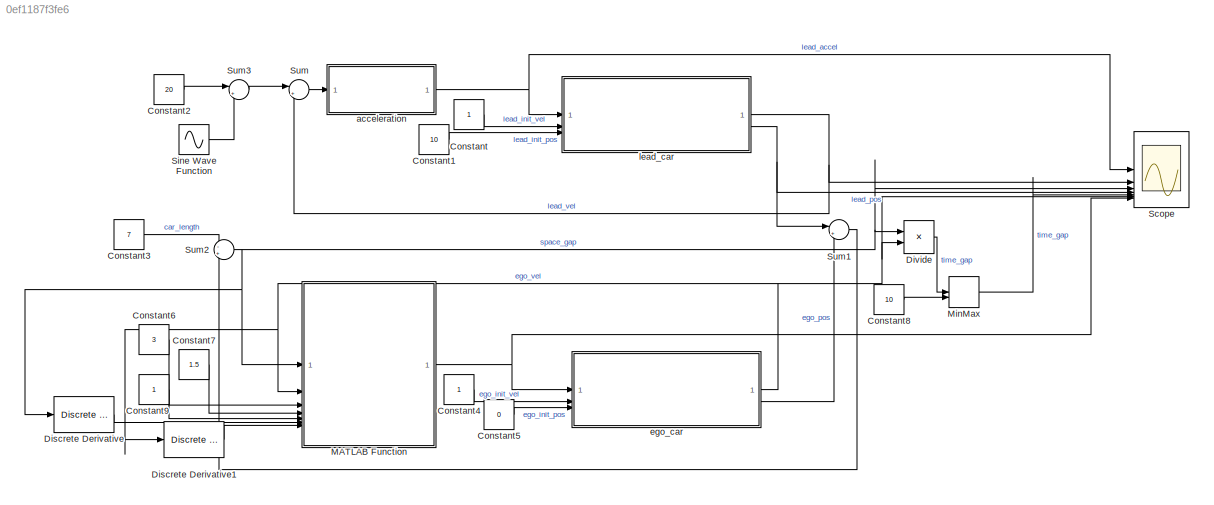
MODEL slx_0ef1187f3fe6
KIND model
CONFIG AbsTol = auto
CONFIG EnableMultiTasking = off
CONFIG FixedStep = 0.01
CONFIG MaxStep = auto
CONFIG MinStep = auto
CONFIG RelTol = 1e-3
CONFIG SampleTimeConstraint = Unconstrained
CONFIG SolverName = FixedStepAuto
CONFIG StartTime = 0.0
CONFIG StopTime = 100
BLOCK [Constant] Constant
BLOCK [Constant] Constant1
  Value = 10
BLOCK [Constant] Constant2
  Value = 20
BLOCK [Constant] Constant3
  Value = 7
BLOCK [Constant] Constant4
BLOCK [Constant] Constant5
  Value = 0
BLOCK [Constant] Constant6
  Value = 3
BLOCK [Constant] Constant7
  Value = 1.5
BLOCK [Constant] Constant8
  Value = 10
BLOCK [Constant] Constant9
BLOCK [Reference] Discrete Derivative  REF=simulink/Discrete/Discrete Derivative
  SourceBlock = simulink/Discrete/Discrete Derivative
  SourceType = Discrete Derivative
BLOCK [Reference] Discrete Derivative1  REF=simulink/Discrete/Discrete Derivative
  SourceBlock = simulink/Discrete/Discrete Derivative
  SourceType = Discrete Derivative
BLOCK [Product] Divide
  Inputs = */
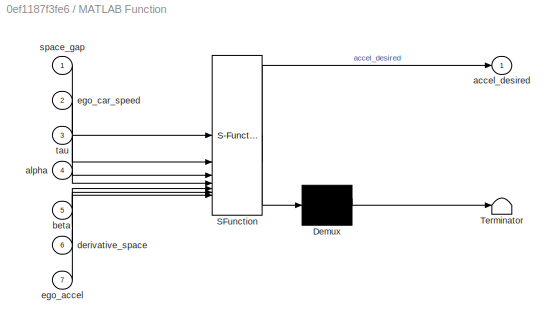
BLOCK [SubSystem] MATLAB Function
  ErrorFcn = Stateflow.Translate.translate
  PermitHierarchicalResolution = ExplicitOnly
  SFBlockType = MATLAB Function
  TreatAsAtomicUnit = on
BLOCK [Demux] MATLAB Function/ Demux 
  Outputs = 1
BLOCK [S-Function] MATLAB Function/ SFunction 
  EnableBusSupport = on
  FunctionName = sf_sfun
  PortCounts = [7 2]
  SFcnIsStateOwnerBlock = off
  SFunctionDeploymentMode = off
  Tag = Stateflow S-Function 1
BLOCK [Terminator] MATLAB Function/ Terminator 
BLOCK [Outport] MATLAB Function/accel_desired
BLOCK [Inport] MATLAB Function/alpha
  Port = 4
BLOCK [Inport] MATLAB Function/beta
  Port = 5
BLOCK [Inport] MATLAB Function/derivative_space
  Port = 6
BLOCK [Inport] MATLAB Function/ego_accel
  Port = 7
BLOCK [Inport] MATLAB Function/ego_car_speed
  Port = 2
BLOCK [Inport] MATLAB Function/space_gap
BLOCK [Inport] MATLAB Function/tau
  Port = 3
BLOCK [MinMax] MinMax
  Inputs = 2
BLOCK [Scope] Scope
  Floating = off
  NumInputPorts = 7
  ScopeSpecificationString = Simulink.scopes.TimeScopeBlockCfg('CurrentConfiguration', extmgr.ConfigurationSet(extmgr.Configuration('Core','General UI',true),extmgr.Configuration('Core','Source UI',true),extmgr.Configuration('Sources','WiredSimulink',true),extmgr.Configuration('Visuals','Time Domain',true,'SerializedDisplays',{struct('MinYLimReal','-10.00000','MaxYLimReal','26.372','YLabelReal','','MinYLimMag','0.00000','MaxY...<+1587ch>
BLOCK [Sin] Sine Wave Function
  Amplitude = 5
  SampleTime = 0
BLOCK [Sum] Sum
  Inputs = |+-
BLOCK [Sum] Sum1
  Inputs = |+-
BLOCK [Sum] Sum2
  Inputs = -+
BLOCK [Sum] Sum3
  Inputs = |++
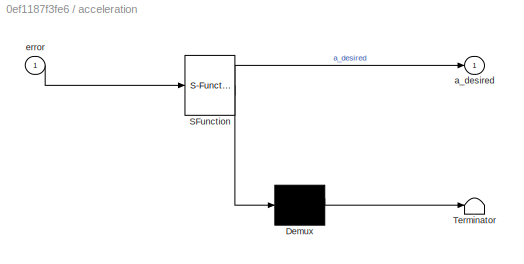
BLOCK [SubSystem] acceleration
  ErrorFcn = Stateflow.Translate.translate
  PermitHierarchicalResolution = ExplicitOnly
  SFBlockType = MATLAB Function
  TreatAsAtomicUnit = on
BLOCK [Demux] acceleration/ Demux 
  Outputs = 1
BLOCK [S-Function] acceleration/ SFunction 
  EnableBusSupport = on
  FunctionName = sf_sfun
  PortCounts = [1 2]
  SFcnIsStateOwnerBlock = off
  SFunctionDeploymentMode = off
  Tag = Stateflow S-Function 2
BLOCK [Terminator] acceleration/ Terminator 
BLOCK [Outport] acceleration/a_desired
BLOCK [Inport] acceleration/error
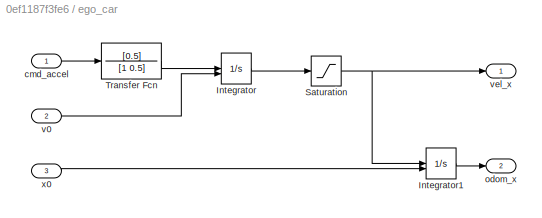
BLOCK [SubSystem] ego_car
BLOCK [Integrator] ego_car/Integrator
  InitialConditionSource = external
BLOCK [Integrator] ego_car/Integrator1
  InitialConditionSource = external
BLOCK [Saturate] ego_car/Saturation
  LowerLimit = 0
  UpperLimit = 80
BLOCK [TransferFcn] ego_car/Transfer Fcn
  Denominator = [1 0.5]
  Numerator = [0.5]
BLOCK [Inport] ego_car/cmd_accel
BLOCK [Outport] ego_car/odom_x
  Port = 2
BLOCK [Inport] ego_car/v0
  Port = 2
BLOCK [Outport] ego_car/vel_x
BLOCK [Inport] ego_car/x0
  Port = 3
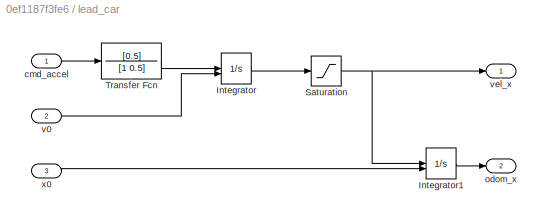
BLOCK [SubSystem] lead_car
BLOCK [Integrator] lead_car/Integrator
  InitialConditionSource = external
BLOCK [Integrator] lead_car/Integrator1
  InitialConditionSource = external
BLOCK [Saturate] lead_car/Saturation
  LowerLimit = 0
  UpperLimit = 80
BLOCK [TransferFcn] lead_car/Transfer Fcn
  Denominator = [1 0.5]
  Numerator = [0.5]
BLOCK [Inport] lead_car/cmd_accel
BLOCK [Outport] lead_car/odom_x
  Port = 2
BLOCK [Inport] lead_car/v0
  Port = 2
BLOCK [Outport] lead_car/vel_x
BLOCK [Inport] lead_car/x0
  Port = 3
LINE Constant1:1 -> lead_car:3
LINE Constant2:1 -> Sum3:1
LINE Constant3:1 -> Sum2:1
LINE Constant4:1 -> ego_car:2
LINE Constant5:1 -> ego_car:3
LINE Constant6:1 -> MATLAB Function:3
LINE Constant7:1 -> MATLAB Function:4
LINE Constant8:1 -> MinMax:2
LINE Constant9:1 -> MATLAB Function:5
LINE Constant:1 -> lead_car:2
LINE Discrete Derivative1:1 -> MATLAB Function:7
LINE Discrete Derivative:1 -> MATLAB Function:6
LINE Divide:1 -> MinMax:1
NET MATLAB Function:1 -> Scope:7, ego_car:1
LINE MinMax:1 -> Scope:5
LINE Sine Wave Function:1 -> Sum3:2
LINE Sum1:1 -> Sum2:2
NET Sum2:1 -> Discrete Derivative:1, Divide:1, MATLAB Function:1, Scope:3
LINE Sum3:1 -> Sum:1
LINE Sum:1 -> acceleration:1
NET acceleration:1 -> Scope:1, lead_car:1
LINE ego_car/Integrator1:1 -> ego_car/odom_x:1
LINE ego_car/Integrator:1 -> ego_car/Saturation:1
NET ego_car/Saturation:1 -> ego_car/Integrator1:1, ego_car/vel_x:1
LINE ego_car/Transfer Fcn:1 -> ego_car/Integrator:1
LINE ego_car/cmd_accel:1 -> ego_car/Transfer Fcn:1
LINE ego_car/v0:1 -> ego_car/Integrator:2
LINE ego_car/x0:1 -> ego_car/Integrator1:2
NET ego_car:1 -> Discrete Derivative1:1, Divide:2, MATLAB Function:2, Scope:6
LINE ego_car:2 -> Sum1:2
LINE lead_car/Integrator1:1 -> lead_car/odom_x:1
LINE lead_car/Integrator:1 -> lead_car/Saturation:1
NET lead_car/Saturation:1 -> lead_car/Integrator1:1, lead_car/vel_x:1
LINE lead_car/Transfer Fcn:1 -> lead_car/Integrator:1
LINE lead_car/cmd_accel:1 -> lead_car/Transfer Fcn:1
LINE lead_car/v0:1 -> lead_car/Integrator:2
LINE lead_car/x0:1 -> lead_car/Integrator1:2
NET lead_car:1 -> Scope:2, Sum:2
NET lead_car:2 -> Scope:4, Sum1:1
note: NET lines group one-source signal fan-out (src -> all destinations, sorted); 1:1 wires keep LINE
CHART MATLAB Function states=1 transitions=1
  STATE_LABEL 'eML_blk_kernel()'
  STATE_LABEL 'SCRIPT:\nfunction accel_desired = constant_time_gap(space_gap, ego_car_speed, tau, alpha, beta, derivative_space, ego_accel)\n\naccel_desired = alpha * (space_gap - tau * ego_car_speed) + beta * (derivative_space - tau * ego_accel);'
CHART acceleration states=1 transitions=1
  STATE_LABEL 'eML_blk_kernel()'
  STATE_LABEL 'SCRIPT:\nfunction a_desired = controller(error)\na_desired = max(-1.5, min(3, error));\nend'
CHART  states=0 transitions=0
CHART  states=0 transitions=0
